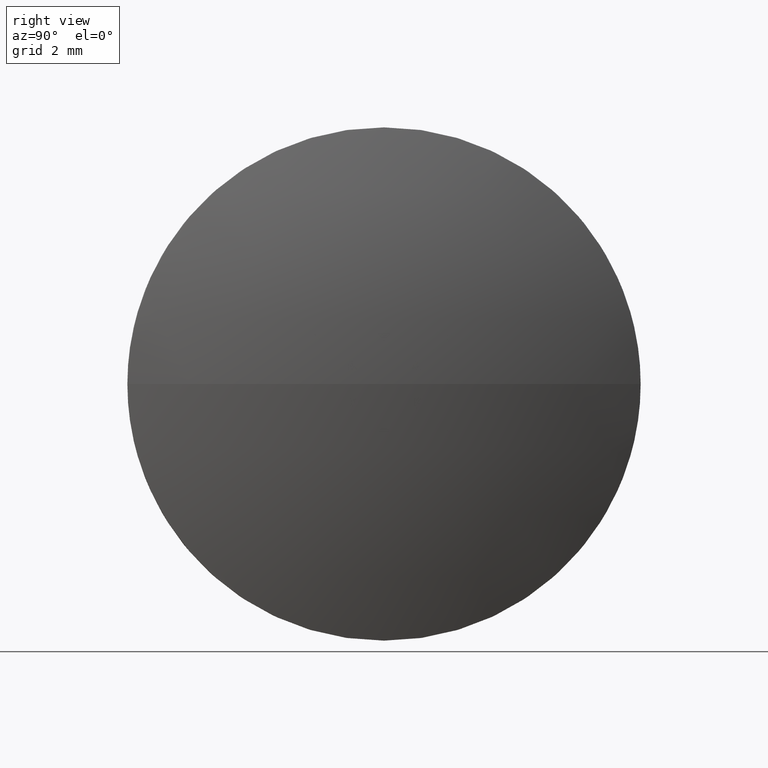
[diagram: clean part render]
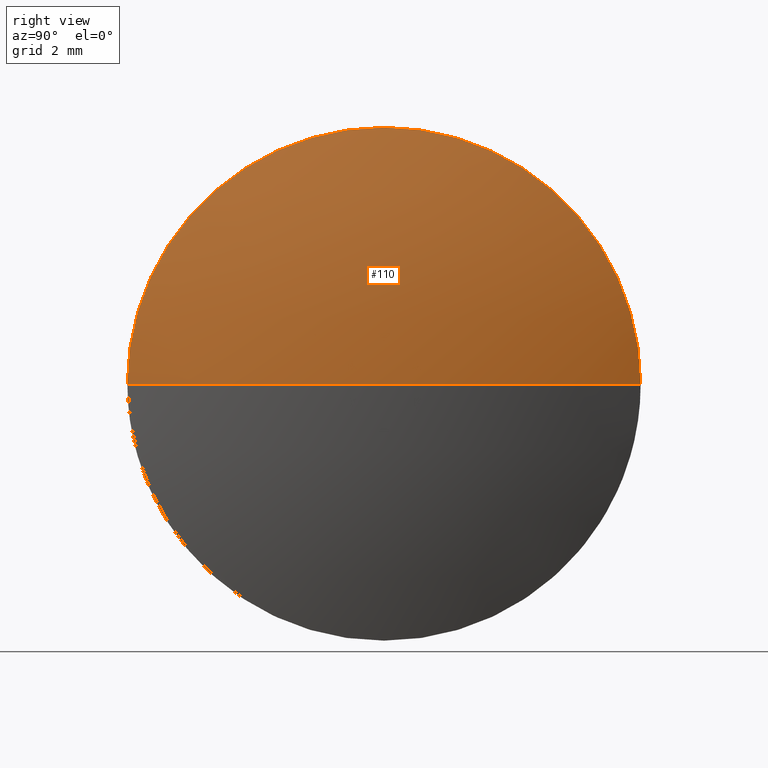
[diagram: same view with one face highlighted and labeled with its STEP entity id]
A machine part, right view. The second image highlights one B-rep face of the part: STEP entity #110.
In plain terms, the highlighted spherical surface has radius 25.8319 mm.
Its self-contained STEP definition (entity closure, byte-faithful):
#2 = DIRECTION ( 'NONE',  ( -0.0000000000000000000, 0.0000000000000000000, 1.000000000000000000 ) ) ;
#3 = VERTEX_POINT ( 'NONE', #49 ) ;
#6 = DIRECTION ( 'NONE',  ( -0.0000000000000000000, 0.0000000000000000000, -1.000000000000000000 ) ) ;
#9 = VERTEX_POINT ( 'NONE', #62 ) ;
#10 = DIRECTION ( 'NONE',  ( -1.000000000000000000, -0.0000000000000000000, -0.0000000000000000000 ) ) ;
#12 = SPHERICAL_SURFACE ( 'NONE', #152, 25.83185039370084000 ) ;
#16 = FACE_OUTER_BOUND ( 'NONE', #96, .T. ) ;
#24 = CARTESIAN_POINT ( 'NONE',  ( 684.5935508571371900, 197.9901794315100300, -9.797174393178804000E-016 ) ) ;
#33 = AXIS2_PLACEMENT_3D ( 'NONE', #34, #2, #41 ) ;
#34 = CARTESIAN_POINT ( 'NONE',  ( 660.0317004634364400, 205.9901794315100300, 0.0000000000000000000 ) ) ;
#41 = DIRECTION ( 'NONE',  ( 1.000000000000000000, 0.0000000000000000000, 0.0000000000000000000 ) ) ;
#42 = AXIS2_PLACEMENT_3D ( 'NONE', #124, #45, #58 ) ;
#45 = DIRECTION ( 'NONE',  ( -1.000000000000000000, -0.0000000000000000000, -0.0000000000000000000 ) ) ;
#46 = ORIENTED_EDGE ( 'NONE', *, *, #69, .T. ) ;
#49 = CARTESIAN_POINT ( 'NONE',  ( 684.5935508571371900, 213.9901794315100000, 0.0000000000000000000 ) ) ;
#50 = ORIENTED_EDGE ( 'NONE', *, *, #75, .F. ) ;
#58 = DIRECTION ( 'NONE',  ( 0.0000000000000000000, 0.0000000000000000000, 1.000000000000000000 ) ) ;
#59 = EDGE_CURVE ( 'NONE', #121, #3, #104, .T. ) ;
#62 = CARTESIAN_POINT ( 'NONE',  ( 685.8635508571372800, 205.9901794315100300, 0.0000000000000000000 ) ) ;
#64 = DIRECTION ( 'NONE',  ( 0.0000000000000000000, 1.000000000000000000, 1.224646799147353200E-016 ) ) ;
#69 = EDGE_CURVE ( 'NONE', #9, #3, #186, .T. ) ;
#71 = CARTESIAN_POINT ( 'NONE',  ( 684.5935508571371900, 205.9901794315100300, 0.0000000000000000000 ) ) ;
#74 = CARTESIAN_POINT ( 'NONE',  ( 684.5935508571371900, 205.9901794315100300, 7.999999999999979600 ) ) ;
#75 = EDGE_CURVE ( 'NONE', #9, #155, #149, .T. ) ;
#81 = CARTESIAN_POINT ( 'NONE',  ( 660.0317004634364400, 205.9901794315100300, 0.0000000000000000000 ) ) ;
#87 = DIRECTION ( 'NONE',  ( 0.0000000000000000000, 0.0000000000000000000, 1.000000000000000000 ) ) ;
#96 = EDGE_LOOP ( 'NONE', ( #50, #46, #99, #157 ) ) ;
#99 = ORIENTED_EDGE ( 'NONE', *, *, #59, .F. ) ;
#104 = CIRCLE ( 'NONE', #42, 7.999999999999979600 ) ;
#108 = DIRECTION ( 'NONE',  ( 0.0000000000000000000, 1.000000000000000000, 0.0000000000000000000 ) ) ;
#109 = CIRCLE ( 'NONE', #183, 7.999999999999979600 ) ;
#110 = ADVANCED_FACE ( 'NONE', ( #16 ), #12, .T. ) ;
#121 = VERTEX_POINT ( 'NONE', #74 ) ;
#124 = CARTESIAN_POINT ( 'NONE',  ( 684.5935508571371900, 205.9901794315100300, 0.0000000000000000000 ) ) ;
#127 = CARTESIAN_POINT ( 'NONE',  ( 660.0317004634364400, 205.9901794315100300, 0.0000000000000000000 ) ) ;
#130 = DIRECTION ( 'NONE',  ( 0.0000000000000000000, 1.224646799147353200E-016, -1.000000000000000000 ) ) ;
#149 = CIRCLE ( 'NONE', #160, 25.83185039370084000 ) ;
#152 = AXIS2_PLACEMENT_3D ( 'NONE', #127, #6, #108 ) ;
#155 = VERTEX_POINT ( 'NONE', #24 ) ;
#157 = ORIENTED_EDGE ( 'NONE', *, *, #169, .F. ) ;
#160 = AXIS2_PLACEMENT_3D ( 'NONE', #81, #130, #64 ) ;
#169 = EDGE_CURVE ( 'NONE', #155, #121, #109, .T. ) ;
#183 = AXIS2_PLACEMENT_3D ( 'NONE', #71, #10, #87 ) ;
#186 = CIRCLE ( 'NONE', #33, 25.83185039370084000 ) ;